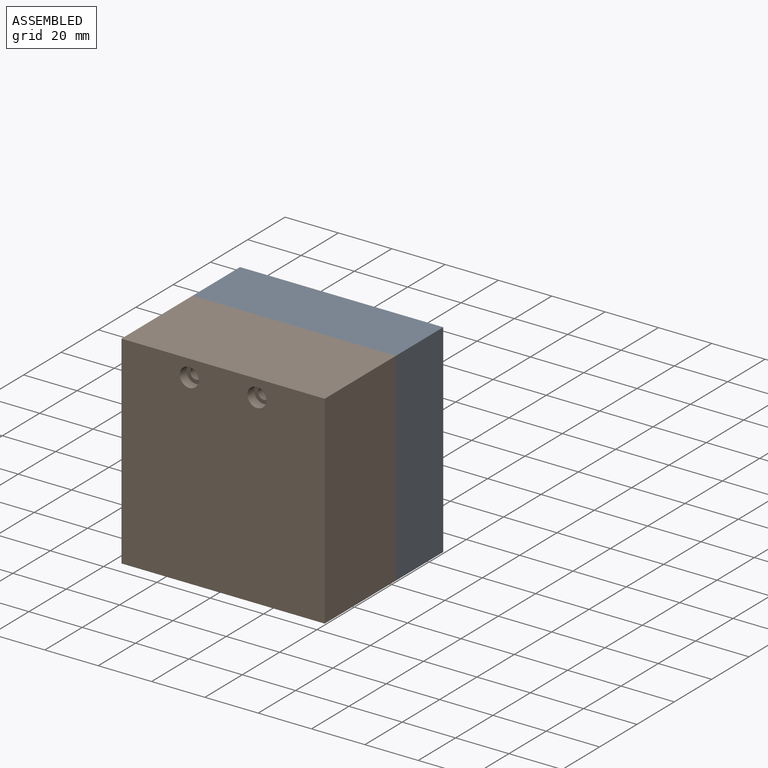
[diagram: assembled view]
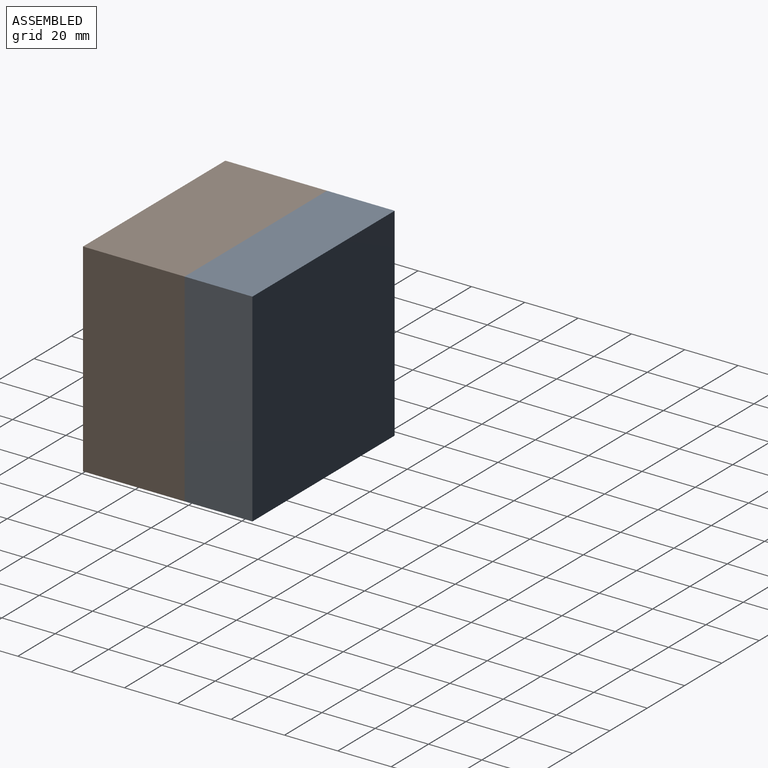
[diagram: assembled view, second angle]
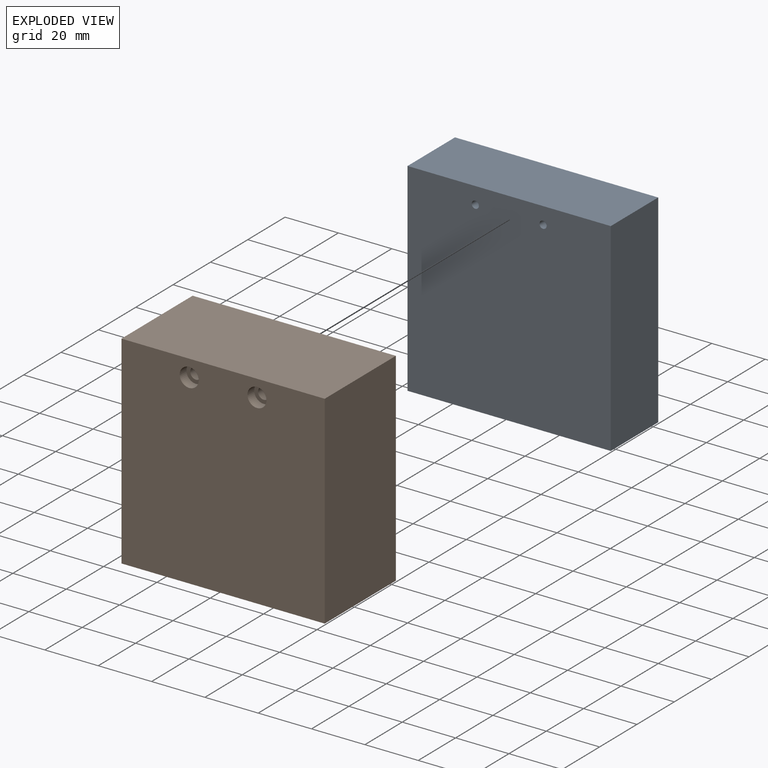
[diagram: exploded view]
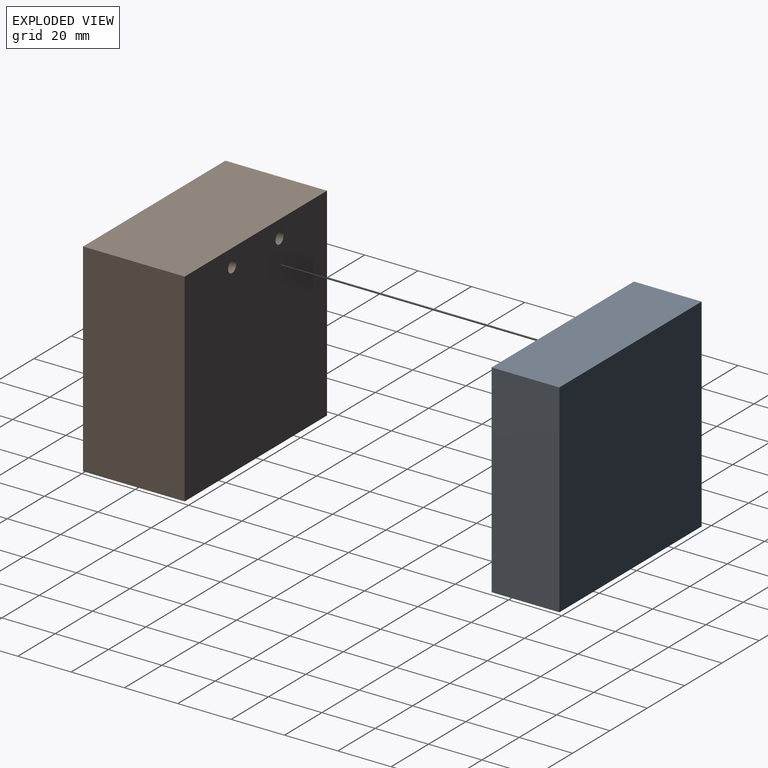
[diagram: exploded view, second angle]
ASSEMBLY  parts=2 mates=3
PART A: 10 faces, bbox 76.2x25.4x76.2 mm
  f0: plane 76.2x25.4mm, normal (1,0,0), area 1935.5mm2, adj f1,f3,f4,f5
  f1: plane 76.2x25.4mm, normal (0,0,-1), area 1935.5mm2, adj f0,f2,f4,f5
  f2: plane 76.2x25.4mm, normal (-1,0,0), area 1935.5mm2, adj f1,f3,f4,f5
  f3: plane 76.2x25.4mm, normal (0,0,1), area 1935.5mm2, adj f0,f2,f4,f5
  f4: plane 76.2x76.2mm, normal (0,1,0), area 5806.4mm2, adj f0,f1,f2,f3
  f5: plane 76.2x76.2mm, normal (0,-1,0), area 5794.9mm2, adj f0,f1,f2,f3,f7,f9
  f6: cone r=0mm half-angle=59deg, axis (0,-1,0), area 6.7mm2, adj f7
  f7: cylinder r=1.35mm len=15.08mm, axis (0,-1,0), area 128.2mm2, adj f5,f6
  f8: cone r=0mm half-angle=59deg, axis (0,-1,0), area 6.7mm2, adj f9
  f9: cylinder r=1.35mm len=15.08mm, axis (0,-1,0), area 128.2mm2, adj f5,f8
PART B: 12 faces, bbox 76.2x38.1x76.2 mm
  f0: plane 76.2x38.1mm, normal (-1,0,0), area 2903.2mm2, adj f1,f3,f4,f5
  f1: plane 76.2x38.1mm, normal (0,0,-1), area 2903.2mm2, adj f0,f2,f4,f5
  f2: plane 76.2x38.1mm, normal (1,0,0), area 2903.2mm2, adj f1,f3,f4,f5
  f3: plane 76.2x38.1mm, normal (0,0,1), area 2903.2mm2, adj f0,f2,f4,f5
  f4: plane 76.2x76.2mm, normal (0,-1,0), area 5726.3mm2, adj f0,f1,f2,f3,f8,f11
  f5: plane 76.2x76.2mm, normal (0,1,0), area 5777.2mm2, adj f0,f1,f2,f3,f6,f9
  f6: cylinder r=2.16mm len=34.47mm, axis (0,-1,0), area 467.6mm2, adj f5,f7
  f7: plane 7.14x7.14mm, normal (0,-1,0), area 25.4mm2, adj f6,f8
  f8: cylinder r=3.57mm len=7.14mm, axis (0,-1,0), area 81.5mm2, adj f4,f7
  f9: cylinder r=2.16mm len=34.47mm, axis (0,-1,0), area 467.6mm2, adj f5,f10
  f10: plane 7.14x7.14mm, normal (0,-1,0), area 25.4mm2, adj f9,f11
  f11: cylinder r=3.57mm len=7.14mm, axis (0,-1,0), area 81.5mm2, adj f4,f10
PLACE A t=(25.55,-0.23,-0.22)mm
PLACE B t=(25.55,-0.23,-0.22)mm
MATE planar A.f5 <-> B.f5  axis (0,-1,0) through (63.65,-0.23,37.82)mm
MATE cylindrical B.f9 <-> A.f8  axis (0,1,0) through (76.35,-0.23,69.63)mm
MATE planar A.f3 <-> B.f3  axis (0,0,1) through (63.65,12.47,75.98)mm
